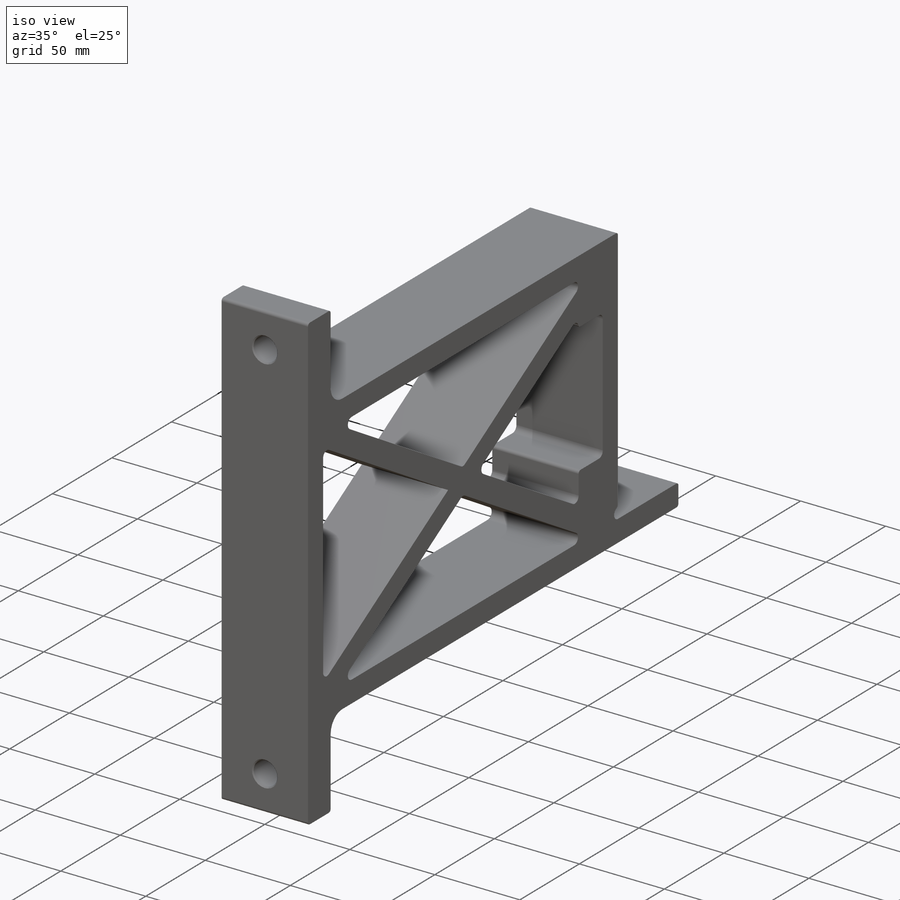
[diagram: iso view]
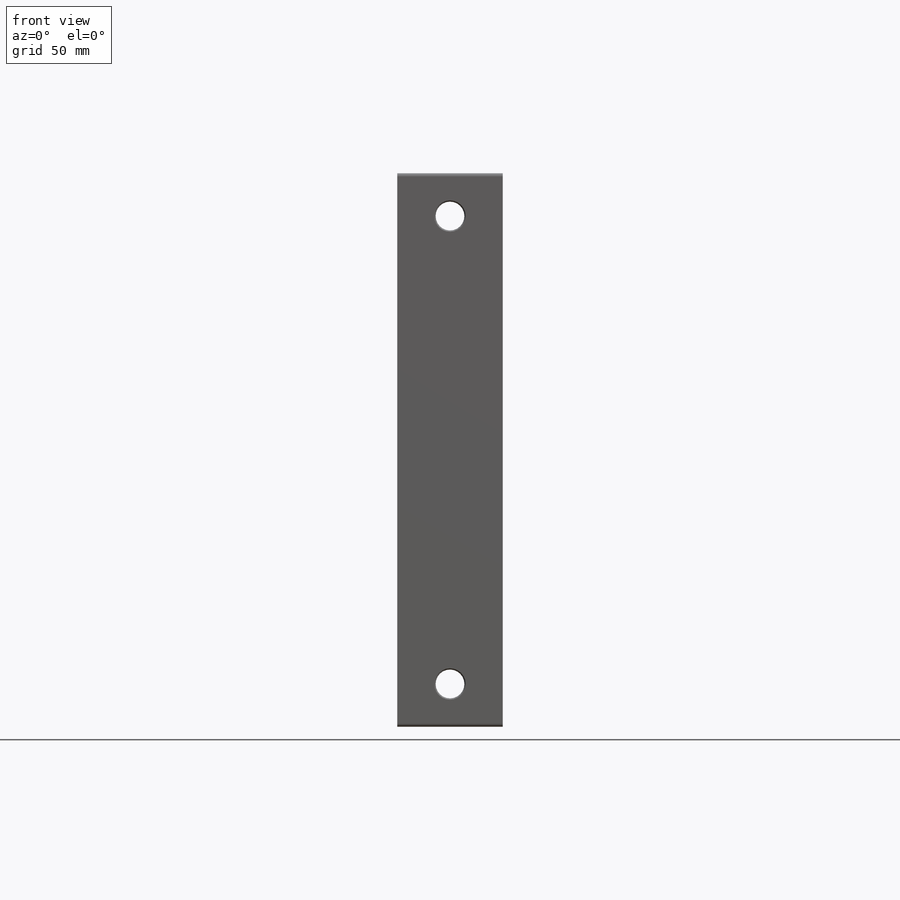
[diagram: front view]
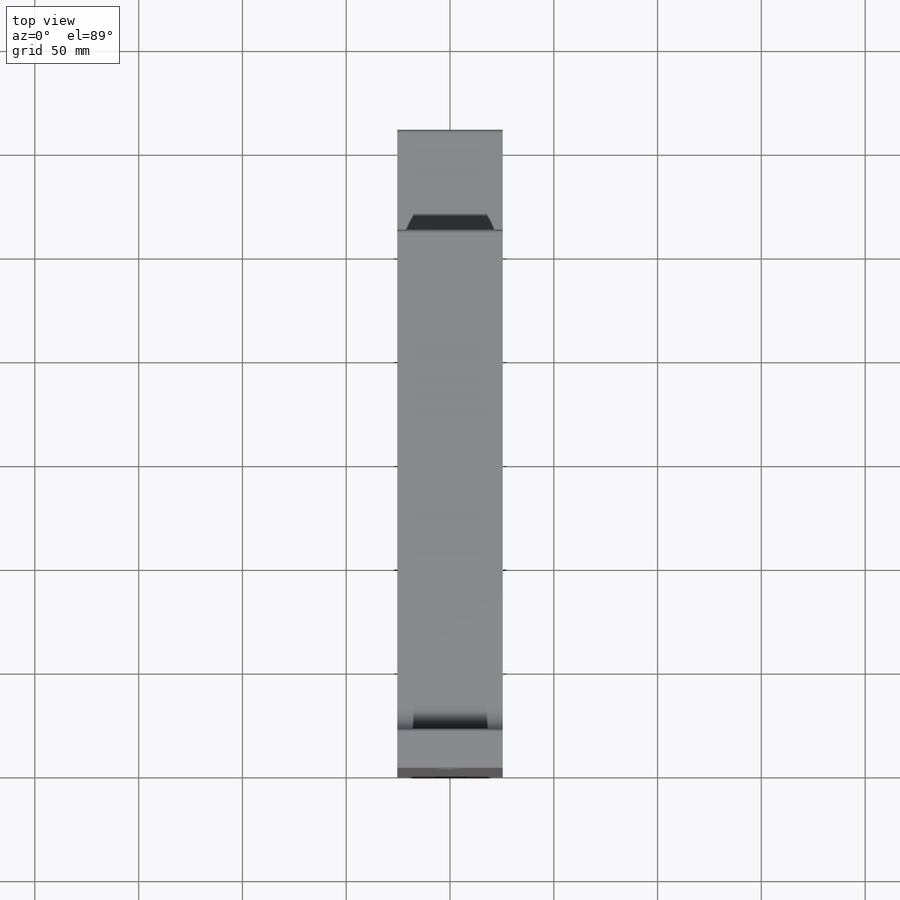
[diagram: top view]
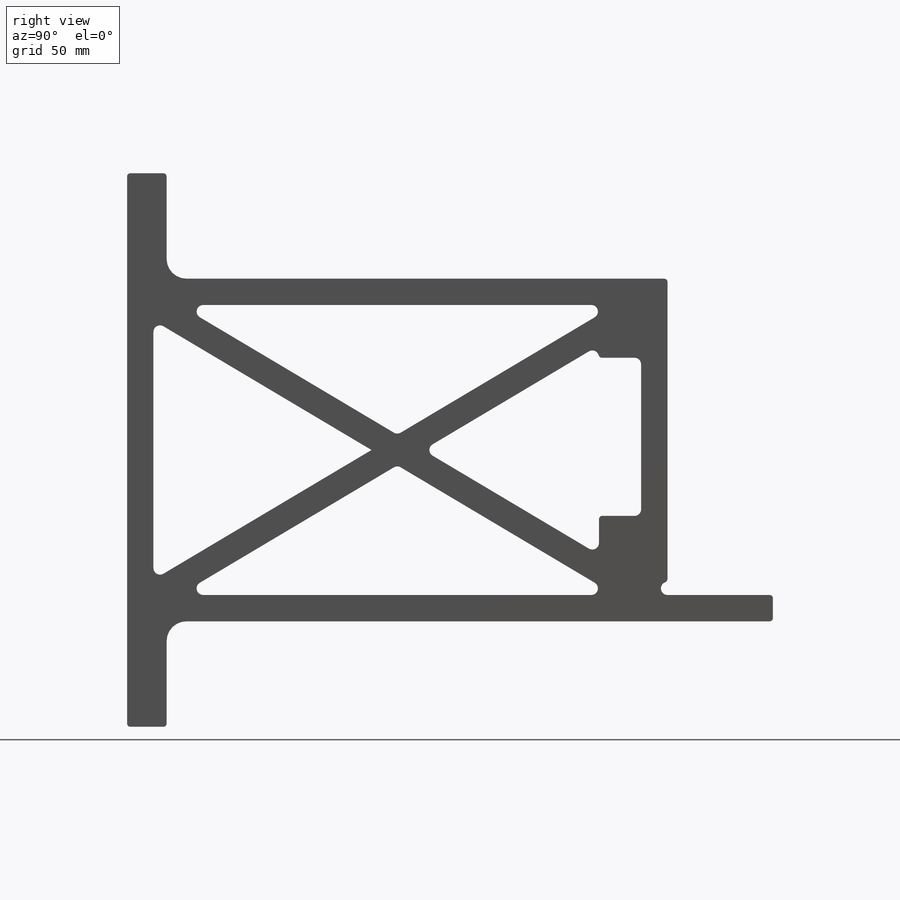
[diagram: right view]
SOLIDWORKS PART (.sldprt)
format: sldprt  version: not decoded by parser v0  size: 638,464 bytes
history: native  units: mm
features: sketch x12, fillet x4, extrude x3, cut_extrude x2, hole x2, thread x2, material x1, mirror x1 (+11 scaffold rows collapsed)
feature tree (38):
  scaffold x11  (default folders/planes/origin — collapsed)
  material  "6061-T6 (SS)"
  sketch  "Sketch1"  dims[c1.D1=19.05mm c1.D2=254.0mm c1.D3=152.4mm c1.D4=165.1mm c1.D5=114.3mm c1.D6=50.8mm c1.D7=5.08mm c1.D8=330.2mm c1.D9=50.8mm c2.D2=260.35mm c2.D5=50.8mm]
  extrude  "Boss-Extrude1"  Depth=50.8mm
  sketch  "Sketch2"  dims[c1.D1=12.7mm c1.D2=25.4mm c2.D1=12.7mm]
  cut_extrude  "Cut-Extrude1"  [1 undecoded]
  sketch  "Sketch3"  dims[D5=12.7mm D6=2.54mm D7=5.0mm]
  sketch  "Sketch4"
  extrude  "Extrude-Thin2"  Depth=12.7mm
  fillet  "Fillet5"  Radius=3.175mm
  sketch  "Sketch11"  dims[c1.D1=57.15mm c1.D2=50.8mm c2.D1=63.5mm c2.D2=57.15mm c3.D1=57.15mm c3.D2=33.02mm]
  extrude  "Boss-Extrude2"  [1 undecoded]
  mirror  "Mirror2"
  sketch  "channel hole centers"  dims[D1=114.3mm]
  hole  "Tapped Hole for 3/8-16 Helicoil1"  Diameter=10.0838mm Depth=29.21mm
  sketch  "Sketch7"
  sketch  "Sketch6"  dims[hole-wizard template sketch: 39 standard entries collapsed; hole parameters kept: c13.Tap Drill Dia.=10.0838mm c13.Tap Drill Depth=29.21mm c13.Near C'Sink Dia.=~12.95908mm c13.D4=~33.297463mm c13.Near C'Sink Angle=90.0deg c14.D5=~14.816244mm c14.Drill Angle=118.0deg]
  thread  "Hole Thread1"  Diameter=22.86mm  [1 undecoded]
  thread  "Hole Thread2"  Diameter=22.86mm  [1 undecoded]
  sketch  "Sketch12"  dims[D1=6.35mm]
  cut_extrude  "Cut-Extrude2"  [1 undecoded]
  fillet  "Fillet1"  Radius=3.175mm
  fillet  "Fillet2"  Radius=1.5875mm
  fillet  "Fillet3"  Radius=9.525mm
  sketch  "mount hole centers"
  hole  "1/2 Clearance Hole1"  Diameter=13.89126mm Depth=19.05mm
  sketch  "Sketch10"
  sketch  "Sketch9"  dims[hole-wizard template sketch: 47 standard entries collapsed; hole parameters kept: c15.Thru Hole Depth=19.05mm c15.Near C'Sink Dia.=~15.16126mm c15.D4=~3.666174mm c15.Near C'Sink Angle=90.0deg c15.Far C'Sink Dia.=~15.16126mm c15.D6=~9.919017mm c15.Far C'Sink Angle=90.0deg]
decode coverage: 18 of 26 modeling features carry decoded parameters
note: ~ marks probable driven/reference dimensions
note: 5 parameter values undecoded
summary: no parameter record found for 3 features
note: suppression state not decoded; provenance and decode notes live in map.json
